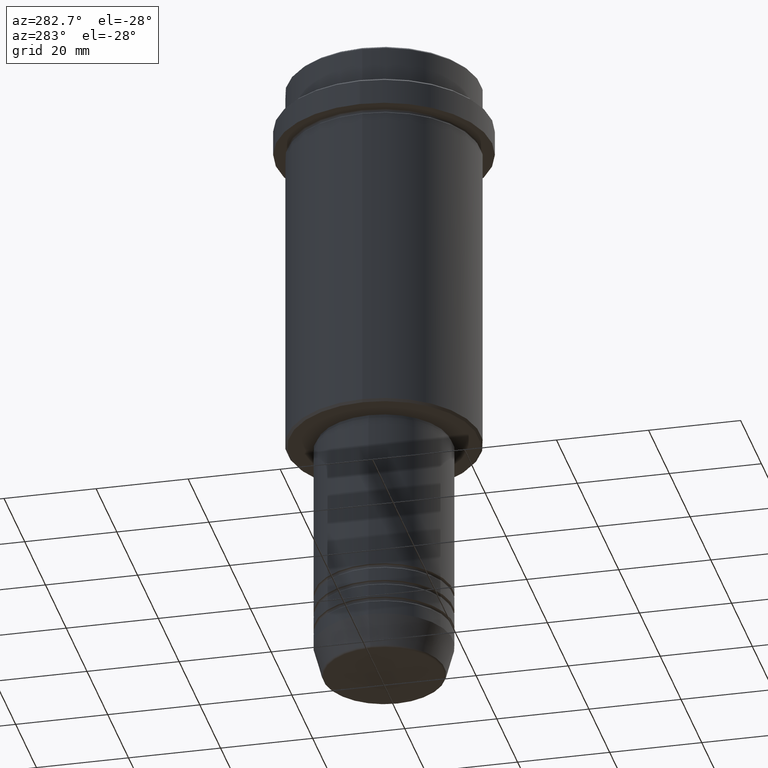
[diagram: clean part render]
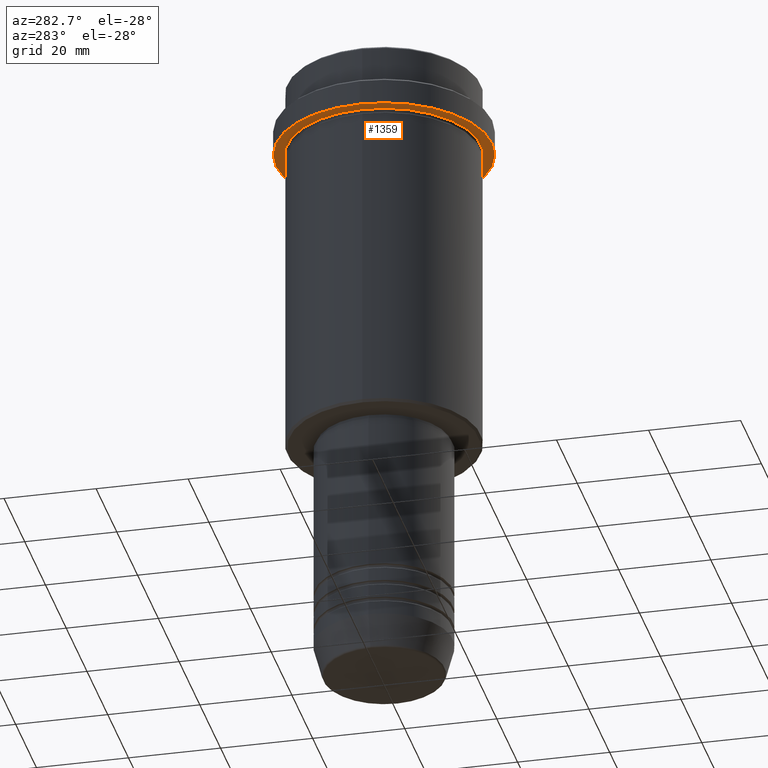
[diagram: same view with one face highlighted and labeled with its STEP entity id]
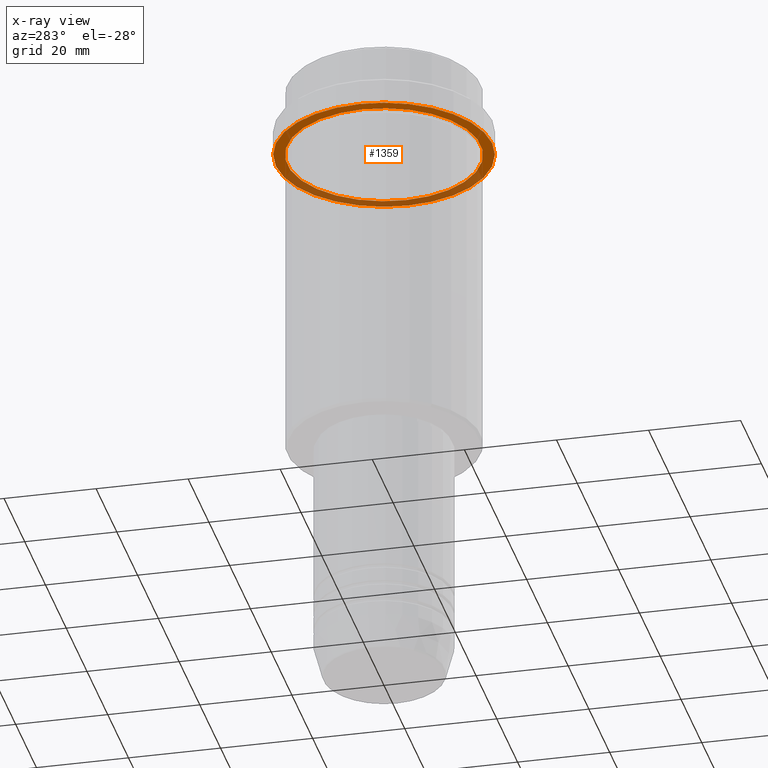
[diagram: x-ray of the same camera — body ghosted, the highlighted face saturated]
A machine part, auxiliary view. The second image highlights one B-rep face of the part: STEP entity #1359.
The next image is the same camera in x-ray: the body ghosted, the highlighted face saturated — about 37% of this face is hidden behind the body in this view.
In plain terms, the highlighted planar face has unit normal (0, 0, -1).
Its self-contained STEP definition (entity closure, byte-faithful):
#52 = EDGE_LOOP ( 'NONE', ( #282, #1347 ) ) ;
#54 = CIRCLE ( 'NONE', #216, 23.50000000000000355 ) ;
#89 = EDGE_CURVE ( 'NONE', #348, #1128, #890, .T. ) ;
#115 = FACE_OUTER_BOUND ( 'NONE', #184, .T. ) ;
#117 = CARTESIAN_POINT ( 'NONE',  ( 0.000000000000000000, 0.000000000000000000, -15.00000000000000178 ) ) ;
#126 = AXIS2_PLACEMENT_3D ( 'NONE', #117, #349, #210 ) ;
#184 = EDGE_LOOP ( 'NONE', ( #559, #1162 ) ) ;
#210 = DIRECTION ( 'NONE',  ( -1.000000000000000000, 0.000000000000000000, 0.000000000000000000 ) ) ;
#216 = AXIS2_PLACEMENT_3D ( 'NONE', #506, #1048, #926 ) ;
#259 = CARTESIAN_POINT ( 'NONE',  ( 23.50000000000000355, 0.000000000000000000, -15.00000000000000000 ) ) ;
#273 = CARTESIAN_POINT ( 'NONE',  ( 20.99999999999999289, 2.571758278209440872E-15, -15.00000000000000178 ) ) ;
#282 = ORIENTED_EDGE ( 'NONE', *, *, #89, .T. ) ;
#314 = CIRCLE ( 'NONE', #126, 20.99999999999999289 ) ;
#317 = PLANE ( 'NONE',  #764 ) ;
#337 = AXIS2_PLACEMENT_3D ( 'NONE', #814, #630, #734 ) ;
#338 = CARTESIAN_POINT ( 'NONE',  ( 0.000000000000000000, 0.000000000000000000, -15.00000000000000178 ) ) ;
#348 = VERTEX_POINT ( 'NONE', #1241 ) ;
#349 = DIRECTION ( 'NONE',  ( -0.000000000000000000, -0.000000000000000000, 1.000000000000000000 ) ) ;
#435 = DIRECTION ( 'NONE',  ( 0.000000000000000000, 0.000000000000000000, -1.000000000000000000 ) ) ;
#506 = CARTESIAN_POINT ( 'NONE',  ( 0.000000000000000000, 0.000000000000000000, -15.00000000000000000 ) ) ;
#559 = ORIENTED_EDGE ( 'NONE', *, *, #741, .F. ) ;
#591 = VERTEX_POINT ( 'NONE', #259 ) ;
#630 = DIRECTION ( 'NONE',  ( -0.000000000000000000, -0.000000000000000000, 1.000000000000000000 ) ) ;
#725 = CARTESIAN_POINT ( 'NONE',  ( -23.50000000000000711, 2.877919977996281109E-15, -15.00000000000000000 ) ) ;
#726 = VERTEX_POINT ( 'NONE', #725 ) ;
#734 = DIRECTION ( 'NONE',  ( 1.000000000000000000, 0.000000000000000000, 0.000000000000000000 ) ) ;
#741 = EDGE_CURVE ( 'NONE', #591, #726, #54, .T. ) ;
#752 = DIRECTION ( 'NONE',  ( -0.000000000000000000, -0.000000000000000000, 1.000000000000000000 ) ) ;
#756 = FACE_BOUND ( 'NONE', #52, .T. ) ;
#764 = AXIS2_PLACEMENT_3D ( 'NONE', #1410, #435, #1288 ) ;
#814 = CARTESIAN_POINT ( 'NONE',  ( 0.000000000000000000, 0.000000000000000000, -15.00000000000000000 ) ) ;
#890 = CIRCLE ( 'NONE', #1283, 20.99999999999999289 ) ;
#926 = DIRECTION ( 'NONE',  ( 1.000000000000000000, 0.000000000000000000, 0.000000000000000000 ) ) ;
#939 = CIRCLE ( 'NONE', #337, 23.50000000000000355 ) ;
#979 = EDGE_CURVE ( 'NONE', #1128, #348, #314, .T. ) ;
#1048 = DIRECTION ( 'NONE',  ( -0.000000000000000000, -0.000000000000000000, 1.000000000000000000 ) ) ;
#1128 = VERTEX_POINT ( 'NONE', #273 ) ;
#1132 = EDGE_CURVE ( 'NONE', #726, #591, #939, .T. ) ;
#1162 = ORIENTED_EDGE ( 'NONE', *, *, #1132, .F. ) ;
#1241 = CARTESIAN_POINT ( 'NONE',  ( -20.99999999999999289, 0.000000000000000000, -15.00000000000000178 ) ) ;
#1283 = AXIS2_PLACEMENT_3D ( 'NONE', #338, #752, #1295 ) ;
#1288 = DIRECTION ( 'NONE',  ( -1.000000000000000000, 0.000000000000000000, -0.000000000000000000 ) ) ;
#1295 = DIRECTION ( 'NONE',  ( -1.000000000000000000, 0.000000000000000000, 0.000000000000000000 ) ) ;
#1347 = ORIENTED_EDGE ( 'NONE', *, *, #979, .T. ) ;
#1359 = ADVANCED_FACE ( 'NONE', ( #756, #115 ), #317, .T. ) ;
#1410 = CARTESIAN_POINT ( 'NONE',  ( 0.000000000000000000, 23.50000000000000355, -15.00000000000000178 ) ) ;